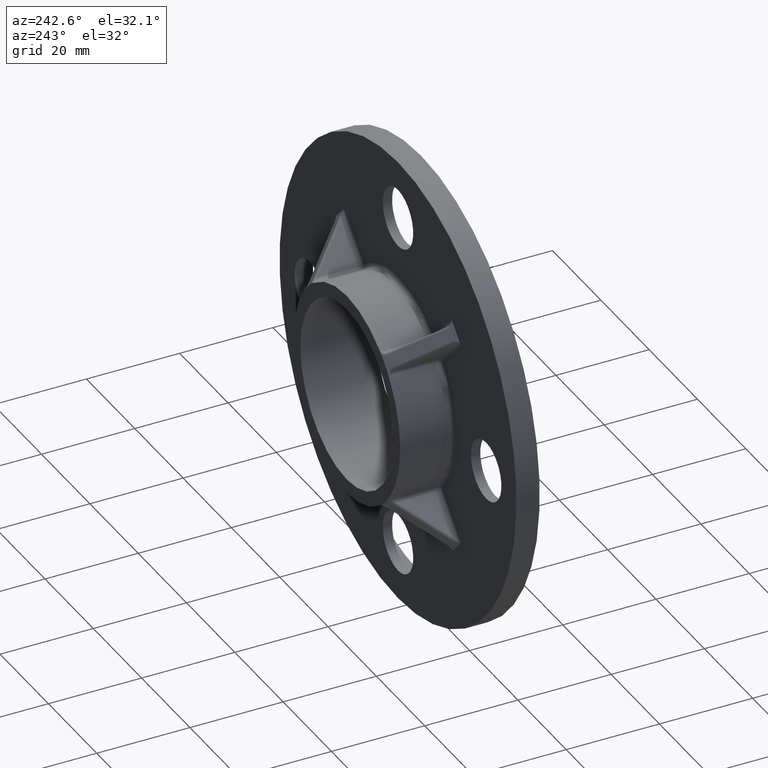
[diagram: clean part render]
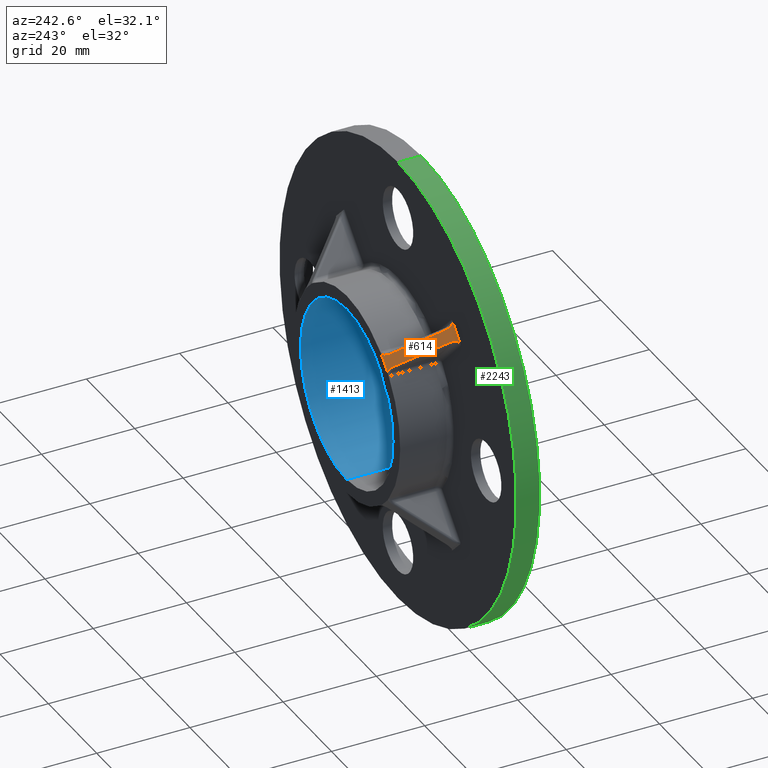
[diagram: same view with three faces highlighted in distinct colors, each labeled with its STEP entity id]
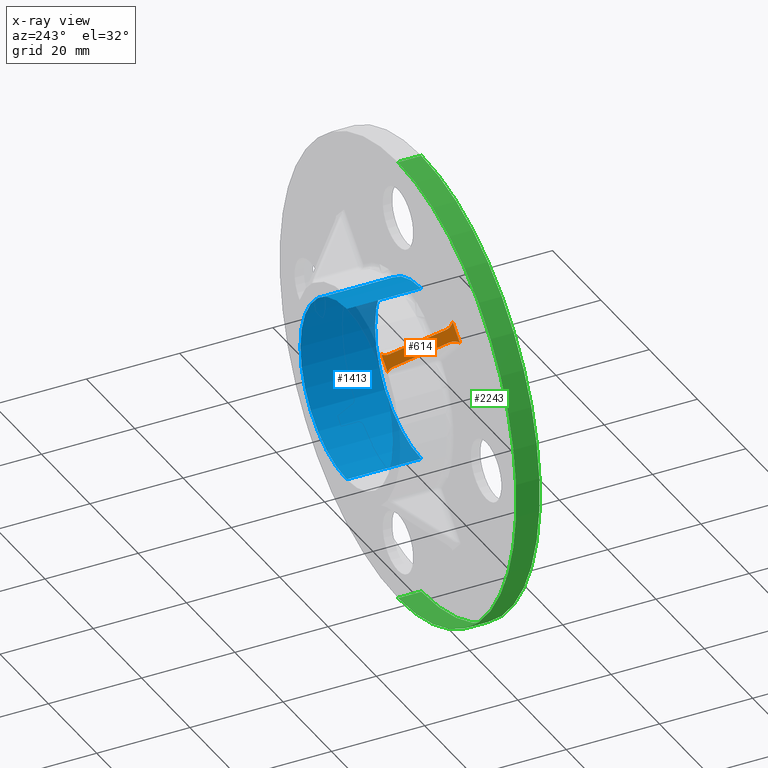
[diagram: x-ray of the same camera — body ghosted, the three highlighted faces saturated]
A machine part, auxiliary view with three faces highlighted in distinct colors.
The next image is the same camera in x-ray (body ghosted, the three faces saturated) — at least one of them is partly hidden behind the body in this view.
Their STEP definitions:

[orange] entity #614 — the highlighted planar face has unit normal (-0.4778, 0.7372, 0.4778).
#20 = EDGE_CURVE ( 'NONE', #1075, #1370, #2963, .T. ) ;
#31 = ORIENTED_EDGE ( 'NONE', *, *, #2941, .T. ) ;
#110 = CARTESIAN_POINT ( 'NONE',  ( -14.84039073069323000, 15.73451392772596300, 16.89402586208651200 ) ) ;
#146 =( BOUNDED_CURVE ( )  B_SPLINE_CURVE ( 3, ( #3144, #708, #1804, #3179 ),
 .UNSPECIFIED., .F., .F. ) 
 B_SPLINE_CURVE_WITH_KNOTS ( ( 4, 4 ),
 ( 3.813509261868310400, 4.712388980384687000 ),
 .UNSPECIFIED. ) 
 CURVE ( )  GEOMETRIC_REPRESENTATION_ITEM ( )  RATIONAL_B_SPLINE_CURVE ( ( 1.000000000000000000, 0.9337937353305304500, 0.9337937353305304500, 1.000000000000000000 ) ) 
 REPRESENTATION_ITEM ( '' )  );
#170 = CARTESIAN_POINT ( 'NONE',  ( -22.20810750811617100, 6.368577070100372800, 23.97587446108266800 ) ) ;
#197 = VECTOR ( 'NONE', #462, 1000.000000000000000 ) ;
#204 = EDGE_CURVE ( 'NONE', #1244, #2023, #3430, .T. ) ;
#211 = EDGE_LOOP ( 'NONE', ( #2932, #31, #1761, #600, #3176, #2040, #1926, #1023 ) ) ;
#220 = CARTESIAN_POINT ( 'NONE',  ( -24.14769657752073300, 5.000000000000000000, 24.14769657752046300 ) ) ;
#248 = VERTEX_POINT ( 'NONE', #2113 ) ;
#281 = DIRECTION ( 'NONE',  ( 0.5212466913156832400, 0.6757246285173459400, -0.5212466913156836900 ) ) ;
#304 = CARTESIAN_POINT ( 'NONE',  ( -22.63731695540172600, 5.000000000000000000, 25.65807619963948500 ) ) ;
#344 = CARTESIAN_POINT ( 'NONE',  ( -22.67756492804815600, 5.759990107394597400, 24.44533188101464600 ) ) ;
#356 = VERTEX_POINT ( 'NONE', #2544 ) ;
#462 = DIRECTION ( 'NONE',  ( 0.7071067811865435800, 0.0000000000000000000, 0.7071067811865514600 ) ) ;
#479 = PLANE ( 'NONE',  #829 ) ;
#518 = EDGE_CURVE ( 'NONE', #2523, #1075, #2250, .T. ) ;
#600 = ORIENTED_EDGE ( 'NONE', *, *, #2078, .T. ) ;
#614 = ADVANCED_FACE ( 'NONE', ( #1443 ), #479, .T. ) ;
#629 =( BOUNDED_CURVE ( )  B_SPLINE_CURVE ( 3, ( #1441, #2274, #2014, #1457 ),
 .UNSPECIFIED., .F., .F. ) 
 B_SPLINE_CURVE_WITH_KNOTS ( ( 4, 4 ),
 ( 4.712388980384695000, 5.861461572711829300 ),
 .UNSPECIFIED. ) 
 CURVE ( )  GEOMETRIC_REPRESENTATION_ITEM ( )  RATIONAL_B_SPLINE_CURVE ( ( 1.000000000000000000, 0.8929629269789041100, 0.8929629269789041100, 1.000000000000000000 ) ) 
 REPRESENTATION_ITEM ( '' )  );
#708 = CARTESIAN_POINT ( 'NONE',  ( -16.89402586208638400, 15.73451392772596700, 14.84039073069331800 ) ) ;
#724 = DIRECTION ( 'NONE',  ( -0.7071067811865435800, 0.0000000000000000000, -0.7071067811865514600 ) ) ;
#769 = VECTOR ( 'NONE', #1005, 1000.000000000000100 ) ;
#829 = AXIS2_PLACEMENT_3D ( 'NONE', #3219, #3500, #724 ) ;
#960 = LINE ( 'NONE', #220, #2333 ) ;
#1005 = DIRECTION ( 'NONE',  ( -0.5212466913156834600, -0.6757246285173459400, 0.5212466913156834600 ) ) ;
#1023 = ORIENTED_EDGE ( 'NONE', *, *, #518, .T. ) ;
#1075 = VERTEX_POINT ( 'NONE', #170 ) ;
#1109 = EDGE_CURVE ( 'NONE', #2975, #248, #1482, .T. ) ;
#1205 = CARTESIAN_POINT ( 'NONE',  ( -15.60863623955647500, 14.92388369488167200, 17.37640319252296800 ) ) ;
#1244 = VERTEX_POINT ( 'NONE', #2075 ) ;
#1254 = CARTESIAN_POINT ( 'NONE',  ( -16.54629867976511200, 15.99999999999999600, 14.77853172679886400 ) ) ;
#1370 = VERTEX_POINT ( 'NONE', #1554 ) ;
#1402 = CARTESIAN_POINT ( 'NONE',  ( -15.36973150603678600, 15.23359081628545700, 17.13749845900328200 ) ) ;
#1441 = CARTESIAN_POINT ( 'NONE',  ( -23.97587446108253700, 6.368577070100371000, 22.20810750811628500 ) ) ;
#1443 = FACE_OUTER_BOUND ( 'NONE', #211, .T. ) ;
#1457 = CARTESIAN_POINT ( 'NONE',  ( -25.65807619964040500, 5.000000000000000000, 22.63731695540077700 ) ) ;
#1482 = LINE ( 'NONE', #1254, #769 ) ;
#1506 = CARTESIAN_POINT ( 'NONE',  ( -17.37640319252286900, 14.92388369488163500, 15.60863623955661500 ) ) ;
#1554 = CARTESIAN_POINT ( 'NONE',  ( -15.60863623955647500, 14.92388369488167200, 17.37640319252296800 ) ) ;
#1658 = VECTOR ( 'NONE', #281, 1000.000000000000100 ) ;
#1694 = CARTESIAN_POINT ( 'NONE',  ( -22.83778413921501700, 5.249115195438906600, 25.07327946529931500 ) ) ;
#1761 = ORIENTED_EDGE ( 'NONE', *, *, #204, .F. ) ;
#1762 = CARTESIAN_POINT ( 'NONE',  ( -15.27964454639807600, 15.35037616638997800, 17.04741149936456800 ) ) ;
#1804 = CARTESIAN_POINT ( 'NONE',  ( -17.04741149936444700, 15.35037616638996200, 15.27964454639819200 ) ) ;
#1831 = EDGE_CURVE ( 'NONE', #248, #356, #629, .T. ) ;
#1849 = CARTESIAN_POINT ( 'NONE',  ( -14.42497833620542700, 16.00000000000000000, 16.89985207035856600 ) ) ;
#1926 = ORIENTED_EDGE ( 'NONE', *, *, #3507, .T. ) ;
#2014 = CARTESIAN_POINT ( 'NONE',  ( -25.07327946530020000, 5.249115195438062800, 22.83778413921540800 ) ) ;
#2023 = VERTEX_POINT ( 'NONE', #2647 ) ;
#2040 = ORIENTED_EDGE ( 'NONE', *, *, #1831, .T. ) ;
#2075 = CARTESIAN_POINT ( 'NONE',  ( -16.94671155098308200, 16.00000000000000000, 14.37811885558088500 ) ) ;
#2078 = EDGE_CURVE ( 'NONE', #1244, #2975, #146, .T. ) ;
#2113 = CARTESIAN_POINT ( 'NONE',  ( -23.97587446108253700, 6.368577070100371000, 22.20810750811628500 ) ) ;
#2250 =( BOUNDED_CURVE ( )  B_SPLINE_CURVE ( 3, ( #304, #1694, #344, #2831 ),
 .UNSPECIFIED., .F., .F. ) 
 B_SPLINE_CURVE_WITH_KNOTS ( ( 4, 4 ),
 ( 3.563316388058473300, 4.712388980384696800 ),
 .UNSPECIFIED. ) 
 CURVE ( )  GEOMETRIC_REPRESENTATION_ITEM ( )  RATIONAL_B_SPLINE_CURVE ( ( 1.000000000000000000, 0.8929629269790689800, 0.8929629269790689800, 1.000000000000000000 ) ) 
 REPRESENTATION_ITEM ( '' )  );
#2274 = CARTESIAN_POINT ( 'NONE',  ( -24.44533188101493700, 5.759990107394054700, 22.67756492804868500 ) ) ;
#2333 = VECTOR ( 'NONE', #2417, 1000.000000000000000 ) ;
#2337 = CARTESIAN_POINT ( 'NONE',  ( -14.37811885558081900, 16.00000000000000000, 16.94671155098317400 ) ) ;
#2417 = DIRECTION ( 'NONE',  ( 0.7071067811865435800, 0.0000000000000000000, 0.7071067811865514600 ) ) ;
#2434 =( BOUNDED_CURVE ( )  B_SPLINE_CURVE ( 3, ( #1205, #1762, #110, #2337 ),
 .UNSPECIFIED., .F., .F. ) 
 B_SPLINE_CURVE_WITH_KNOTS ( ( 4, 4 ),
 ( 1.570796326794891200, 2.469676045311218100 ),
 .UNSPECIFIED. ) 
 CURVE ( )  GEOMETRIC_REPRESENTATION_ITEM ( )  RATIONAL_B_SPLINE_CURVE ( ( 1.000000000000000000, 0.9337937353305376700, 0.9337937353305376700, 1.000000000000000000 ) ) 
 REPRESENTATION_ITEM ( '' )  );
#2453 = CARTESIAN_POINT ( 'NONE',  ( -22.63731695540172600, 5.000000000000000000, 25.65807619963948500 ) ) ;
#2523 = VERTEX_POINT ( 'NONE', #2453 ) ;
#2544 = CARTESIAN_POINT ( 'NONE',  ( -25.65807619964040500, 5.000000000000000000, 22.63731695540077700 ) ) ;
#2647 = CARTESIAN_POINT ( 'NONE',  ( -14.37811885558081900, 16.00000000000000000, 16.94671155098317400 ) ) ;
#2831 = CARTESIAN_POINT ( 'NONE',  ( -22.20810750811617100, 6.368577070100372800, 23.97587446108266800 ) ) ;
#2932 = ORIENTED_EDGE ( 'NONE', *, *, #20, .T. ) ;
#2941 = EDGE_CURVE ( 'NONE', #1370, #2023, #2434, .T. ) ;
#2963 = LINE ( 'NONE', #1402, #1658 ) ;
#2975 = VERTEX_POINT ( 'NONE', #1506 ) ;
#3144 = CARTESIAN_POINT ( 'NONE',  ( -16.94671155098308200, 16.00000000000000000, 14.37811885558088500 ) ) ;
#3176 = ORIENTED_EDGE ( 'NONE', *, *, #1109, .T. ) ;
#3179 = CARTESIAN_POINT ( 'NONE',  ( -17.37640319252286900, 14.92388369488163500, 15.60863623955661500 ) ) ;
#3219 = CARTESIAN_POINT ( 'NONE',  ( -15.66241520328207800, 16.00000000000000000, 15.66241520328190400 ) ) ;
#3430 = LINE ( 'NONE', #1849, #197 ) ;
#3500 = DIRECTION ( 'NONE',  ( -0.4778094670393788200, 0.7371541402007416600, 0.4778094670393734900 ) ) ;
#3507 = EDGE_CURVE ( 'NONE', #356, #2523, #960, .T. ) ;

[blue] entity #1413 — the highlighted cylindrical surface (partial cylindrical patch) has radius 19.15 mm, axis along (-0, -1, -0).
#25 = CARTESIAN_POINT ( 'NONE',  ( 0.0000000000000000000, 5.000000000000000000, -19.14999999999999900 ) ) ;
#61 = CARTESIAN_POINT ( 'NONE',  ( 2.345198620367181000E-015, 5.000000000000000000, 19.14999999999999900 ) ) ;
#75 = CARTESIAN_POINT ( 'NONE',  ( 2.345198620367181000E-015, 0.0000000000000000000, 19.14999999999999900 ) ) ;
#166 = CARTESIAN_POINT ( 'NONE',  ( 0.0000000000000000000, 0.0000000000000000000, 0.0000000000000000000 ) ) ;
#205 = CARTESIAN_POINT ( 'NONE',  ( 0.0000000000000000000, 5.000000000000000000, 0.0000000000000000000 ) ) ;
#269 = EDGE_CURVE ( 'NONE', #450, #2283, #282, .T. ) ;
#282 = CIRCLE ( 'NONE', #2667, 19.14999999999999900 ) ;
#450 = VERTEX_POINT ( 'NONE', #75 ) ;
#523 = VERTEX_POINT ( 'NONE', #3398 ) ;
#556 = CARTESIAN_POINT ( 'NONE',  ( 0.0000000000000000000, 16.00000000000000000, 0.0000000000000000000 ) ) ;
#740 = DIRECTION ( 'NONE',  ( -0.0000000000000000000, -1.000000000000000000, -0.0000000000000000000 ) ) ;
#825 = ORIENTED_EDGE ( 'NONE', *, *, #1901, .F. ) ;
#847 = EDGE_CURVE ( 'NONE', #523, #2283, #2743, .T. ) ;
#886 = DIRECTION ( 'NONE',  ( -0.0000000000000000000, -1.000000000000000000, -0.0000000000000000000 ) ) ;
#938 = ORIENTED_EDGE ( 'NONE', *, *, #269, .F. ) ;
#1033 = ORIENTED_EDGE ( 'NONE', *, *, #1196, .F. ) ;
#1182 = DIRECTION ( 'NONE',  ( -0.0000000000000000000, -1.000000000000000000, -0.0000000000000000000 ) ) ;
#1196 = EDGE_CURVE ( 'NONE', #523, #1711, #2908, .T. ) ;
#1273 = DIRECTION ( 'NONE',  ( 0.0000000000000000000, 1.000000000000000000, 0.0000000000000000000 ) ) ;
#1356 = FACE_OUTER_BOUND ( 'NONE', #2177, .T. ) ;
#1392 = VECTOR ( 'NONE', #1182, 1000.000000000000000 ) ;
#1413 = ADVANCED_FACE ( 'NONE', ( #1356 ), #2607, .F. ) ;
#1419 = CARTESIAN_POINT ( 'NONE',  ( 2.345198620367181000E-015, 16.00000000000000000, 19.14999999999999900 ) ) ;
#1640 = AXIS2_PLACEMENT_3D ( 'NONE', #556, #1670, #3299 ) ;
#1670 = DIRECTION ( 'NONE',  ( -0.0000000000000000000, -1.000000000000000000, 0.0000000000000000000 ) ) ;
#1706 = ORIENTED_EDGE ( 'NONE', *, *, #847, .T. ) ;
#1711 = VERTEX_POINT ( 'NONE', #1419 ) ;
#1901 = EDGE_CURVE ( 'NONE', #1711, #450, #2692, .T. ) ;
#2127 = DIRECTION ( 'NONE',  ( 0.0000000000000000000, 0.0000000000000000000, -1.000000000000000000 ) ) ;
#2177 = EDGE_LOOP ( 'NONE', ( #825, #1033, #1706, #938 ) ) ;
#2283 = VERTEX_POINT ( 'NONE', #3536 ) ;
#2364 = DIRECTION ( 'NONE',  ( 0.0000000000000000000, 0.0000000000000000000, 1.000000000000000000 ) ) ;
#2607 = CYLINDRICAL_SURFACE ( 'NONE', #2716, 19.14999999999999900 ) ;
#2667 = AXIS2_PLACEMENT_3D ( 'NONE', #166, #1273, #2364 ) ;
#2692 = LINE ( 'NONE', #61, #1392 ) ;
#2716 = AXIS2_PLACEMENT_3D ( 'NONE', #205, #740, #2127 ) ;
#2743 = LINE ( 'NONE', #25, #3289 ) ;
#2908 = CIRCLE ( 'NONE', #1640, 19.14999999999999900 ) ;
#3289 = VECTOR ( 'NONE', #886, 1000.000000000000000 ) ;
#3299 = DIRECTION ( 'NONE',  ( 0.0000000000000000000, 0.0000000000000000000, 1.000000000000000000 ) ) ;
#3398 = CARTESIAN_POINT ( 'NONE',  ( 0.0000000000000000000, 16.00000000000000000, -19.14999999999999900 ) ) ;
#3536 = CARTESIAN_POINT ( 'NONE',  ( 0.0000000000000000000, 0.0000000000000000000, -19.14999999999999900 ) ) ;

[green] entity #2243 — the highlighted cylindrical surface (partial cylindrical patch) has radius 49 mm, axis along (-0, -1, -0).
#14 = CYLINDRICAL_SURFACE ( 'NONE', #1492, 48.99999999999999300 ) ;
#40 = CARTESIAN_POINT ( 'NONE',  ( 0.0000000000000000000, 5.000000000000000000, -48.99999999999999300 ) ) ;
#93 = CARTESIAN_POINT ( 'NONE',  ( 6.000769315822030100E-015, 0.0000000000000000000, 48.99999999999999300 ) ) ;
#179 = LINE ( 'NONE', #430, #1471 ) ;
#349 = EDGE_LOOP ( 'NONE', ( #2821, #735, #1821, #481 ) ) ;
#355 = AXIS2_PLACEMENT_3D ( 'NONE', #2525, #1678, #607 ) ;
#412 = CARTESIAN_POINT ( 'NONE',  ( 0.0000000000000000000, 5.000000000000000000, -48.99999999999999300 ) ) ;
#430 = CARTESIAN_POINT ( 'NONE',  ( 6.000769315822030100E-015, 5.000000000000000000, 48.99999999999999300 ) ) ;
#481 = ORIENTED_EDGE ( 'NONE', *, *, #864, .T. ) ;
#607 = DIRECTION ( 'NONE',  ( 0.0000000000000000000, 0.0000000000000000000, 1.000000000000000000 ) ) ;
#710 = DIRECTION ( 'NONE',  ( -0.0000000000000000000, -1.000000000000000000, -0.0000000000000000000 ) ) ;
#711 = LINE ( 'NONE', #412, #1302 ) ;
#735 = ORIENTED_EDGE ( 'NONE', *, *, #2203, .F. ) ;
#795 = VERTEX_POINT ( 'NONE', #1666 ) ;
#864 = EDGE_CURVE ( 'NONE', #3142, #1036, #2176, .T. ) ;
#1036 = VERTEX_POINT ( 'NONE', #93 ) ;
#1250 = DIRECTION ( 'NONE',  ( -0.0000000000000000000, -1.000000000000000000, -0.0000000000000000000 ) ) ;
#1295 = DIRECTION ( 'NONE',  ( 0.0000000000000000000, 0.0000000000000000000, 1.000000000000000000 ) ) ;
#1302 = VECTOR ( 'NONE', #710, 1000.000000000000000 ) ;
#1308 = CARTESIAN_POINT ( 'NONE',  ( 0.0000000000000000000, 5.000000000000000000, 0.0000000000000000000 ) ) ;
#1471 = VECTOR ( 'NONE', #1250, 1000.000000000000000 ) ;
#1489 = CARTESIAN_POINT ( 'NONE',  ( 0.0000000000000000000, 0.0000000000000000000, -48.99999999999999300 ) ) ;
#1492 = AXIS2_PLACEMENT_3D ( 'NONE', #2973, #1873, #2648 ) ;
#1540 = AXIS2_PLACEMENT_3D ( 'NONE', #1308, #1841, #1295 ) ;
#1666 = CARTESIAN_POINT ( 'NONE',  ( 6.000769315822030100E-015, 5.000000000000000000, 48.99999999999999300 ) ) ;
#1678 = DIRECTION ( 'NONE',  ( 0.0000000000000000000, 1.000000000000000000, 0.0000000000000000000 ) ) ;
#1821 = ORIENTED_EDGE ( 'NONE', *, *, #3249, .T. ) ;
#1841 = DIRECTION ( 'NONE',  ( 0.0000000000000000000, 1.000000000000000000, 0.0000000000000000000 ) ) ;
#1873 = DIRECTION ( 'NONE',  ( -0.0000000000000000000, -1.000000000000000000, -0.0000000000000000000 ) ) ;
#2168 = FACE_OUTER_BOUND ( 'NONE', #349, .T. ) ;
#2176 = CIRCLE ( 'NONE', #355, 48.99999999999999300 ) ;
#2203 = EDGE_CURVE ( 'NONE', #2613, #795, #3284, .T. ) ;
#2243 = ADVANCED_FACE ( 'NONE', ( #2168 ), #14, .T. ) ;
#2525 = CARTESIAN_POINT ( 'NONE',  ( 0.0000000000000000000, 0.0000000000000000000, 0.0000000000000000000 ) ) ;
#2613 = VERTEX_POINT ( 'NONE', #40 ) ;
#2648 = DIRECTION ( 'NONE',  ( 0.0000000000000000000, 0.0000000000000000000, -1.000000000000000000 ) ) ;
#2821 = ORIENTED_EDGE ( 'NONE', *, *, #3290, .F. ) ;
#2973 = CARTESIAN_POINT ( 'NONE',  ( 0.0000000000000000000, 5.000000000000000000, 0.0000000000000000000 ) ) ;
#3142 = VERTEX_POINT ( 'NONE', #1489 ) ;
#3249 = EDGE_CURVE ( 'NONE', #2613, #3142, #711, .T. ) ;
#3284 = CIRCLE ( 'NONE', #1540, 48.99999999999999300 ) ;
#3290 = EDGE_CURVE ( 'NONE', #795, #1036, #179, .T. ) ;